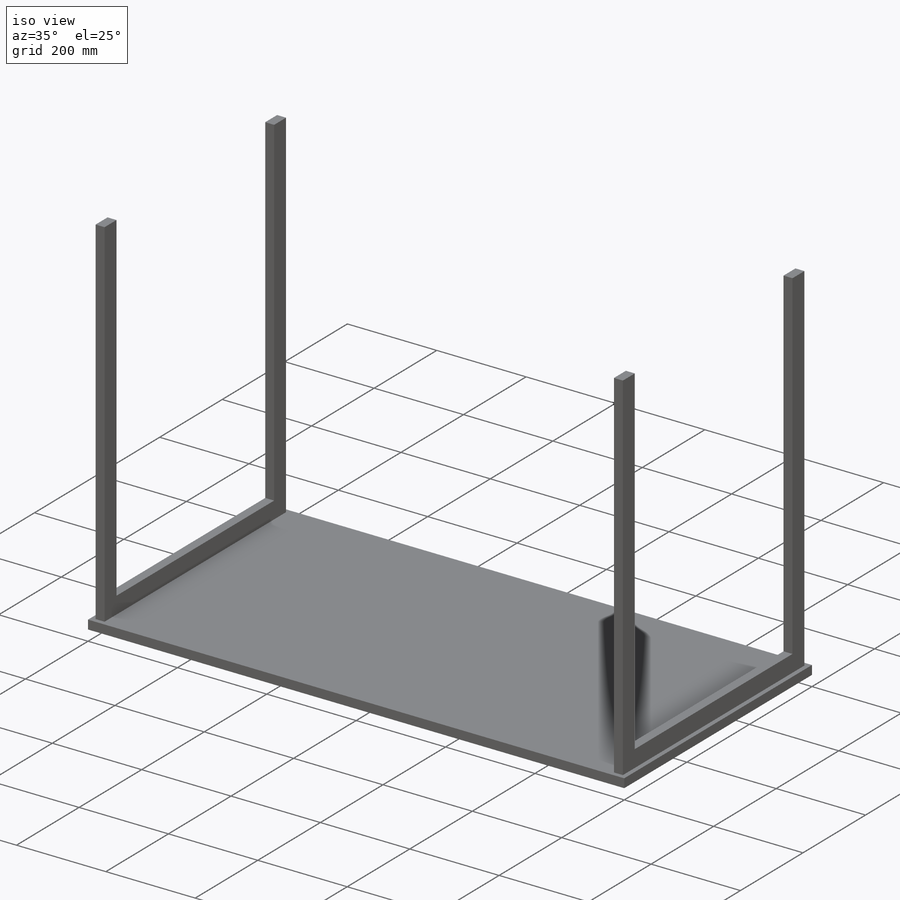
[diagram: iso view]
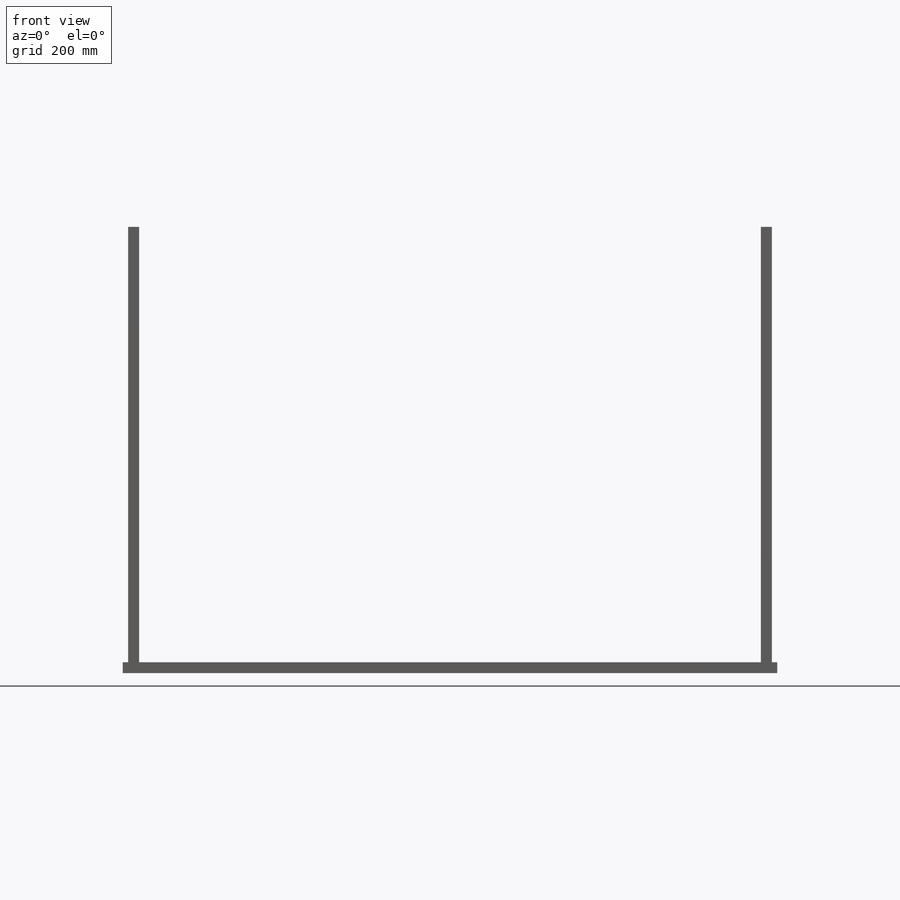
[diagram: front view]
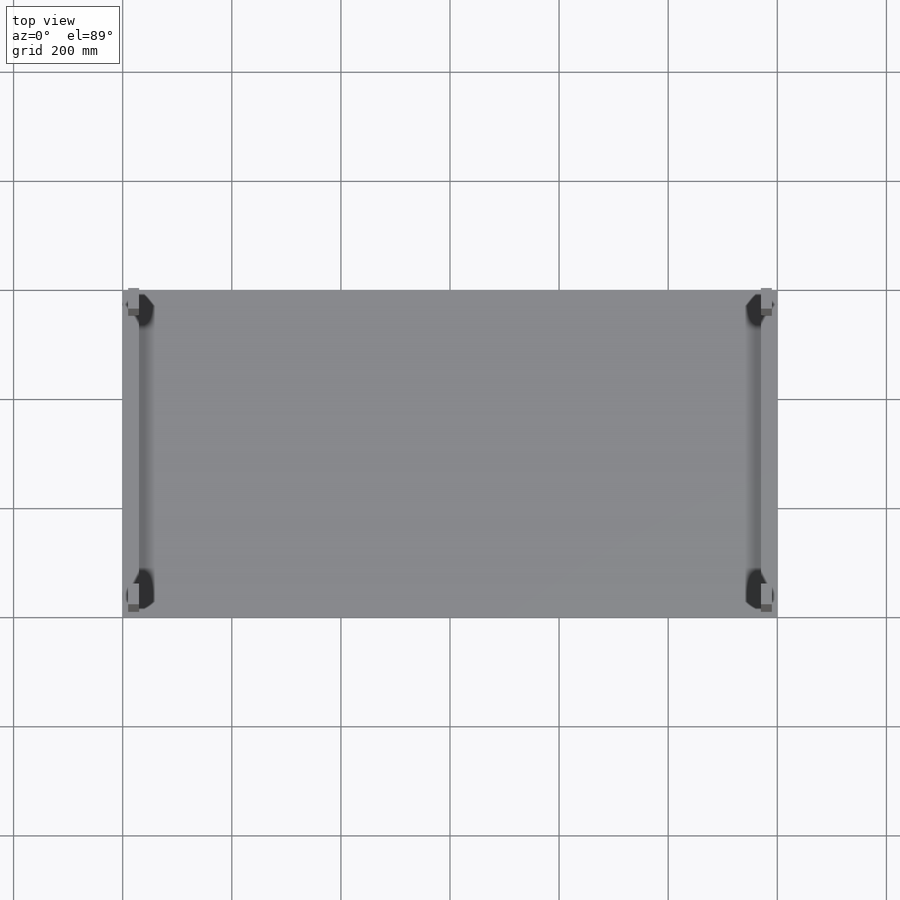
[diagram: top view]
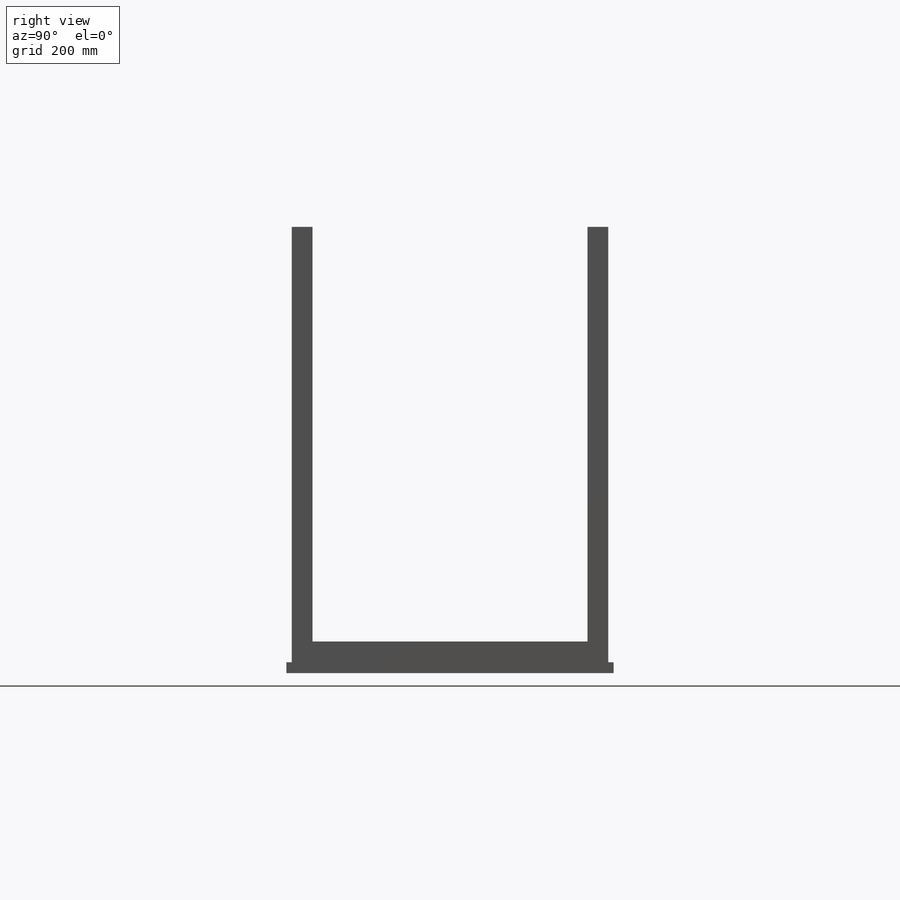
[diagram: right view]
SOLIDWORKS PART (.sldprt)
format: sldprt  version: not decoded by parser v0  size: 220,160 bytes
history: native  units: mm
features: sketch x3, extrude x3, material x1 (+16 scaffold rows collapsed)
feature tree (23):
  scaffold x16  (default folders/planes/origin — collapsed)
  material  "Material <not specified>"
  sketch  "Sketch9"  dims[D1=1200.0mm D2=600.0mm]
  extrude  "Boss-Extrude4"  Depth=20mm
  sketch  "Sketch10"  dims[D1=10.0mm D2=20.0mm D3=10.0mm D4=10.0mm]
  extrude  "Boss-Extrude6"  Depth=38mm
  sketch  "Sketch11"  dims[D1=38.0mm]
  extrude  "Boss-Extrude7"  Depth=760mm
decode coverage: 6 of 6 modeling features carry decoded parameters
note: suppression state not decoded; provenance and decode notes live in map.json
